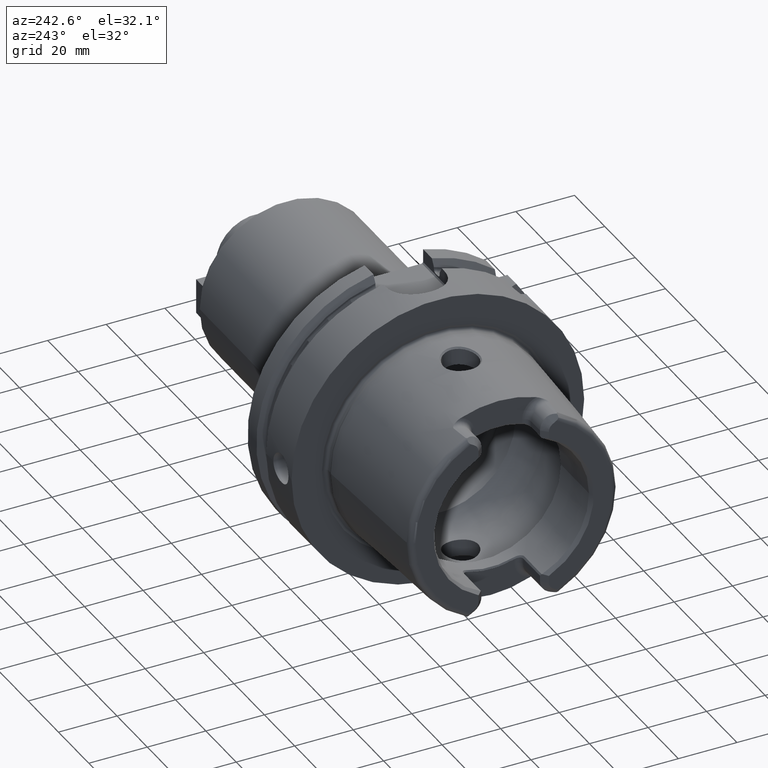
[diagram: clean part render]
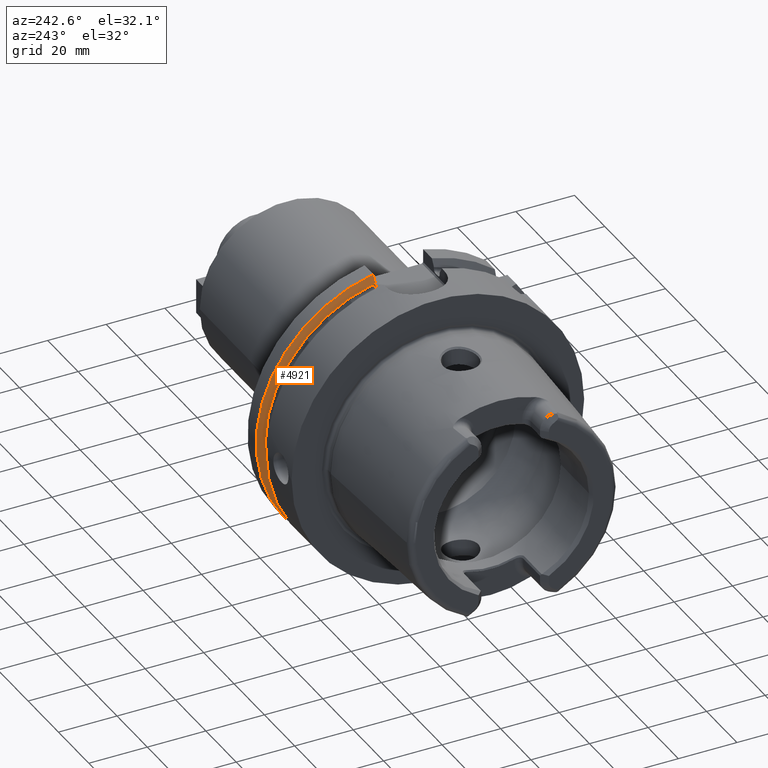
[diagram: same view with one face highlighted and labeled with its STEP entity id]
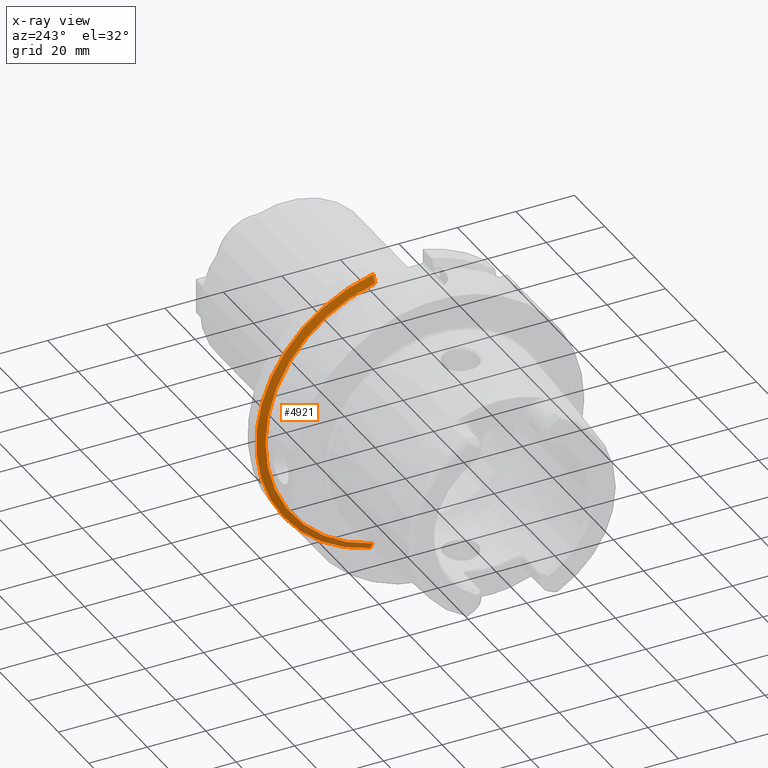
[diagram: x-ray of the same camera — body ghosted, the highlighted face saturated]
A machine part, auxiliary view. The second image highlights one B-rep face of the part: STEP entity #4921.
The next image is the same camera in x-ray: the body ghosted, the highlighted face saturated — about 15% of this face is hidden behind the body in this view.
In plain terms, the highlighted conical surface has half-angle 60 deg.
Its self-contained STEP definition (entity closure, byte-faithful):
#1646=CARTESIAN_POINT('',(2.324759526419E1,1.1E1,-4.877499359303E1));
#1647=CARTESIAN_POINT('',(2.309075618244E1,1.1E1,-4.849651763825E1));
#1648=CARTESIAN_POINT('',(2.277996511889E1,1.1E1,-4.794446101512E1));
#1649=CARTESIAN_POINT('',(2.232251548208E1,1.1E1,-4.713119970766E1));
#1650=CARTESIAN_POINT('',(2.202321854676E1,1.1E1,-4.659863454325E1));
#1651=CARTESIAN_POINT('',(2.1875E1,1.1E1,-4.633477721644E1));
#1653=CARTESIAN_POINT('',(2.324759526419E1,0.E0,0.E0));
#1654=DIRECTION('',(1.E0,0.E0,0.E0));
#1655=DIRECTION('',(0.E0,2.2E-1,-9.754998718606E-1));
#1656=AXIS2_PLACEMENT_3D('',#1653,#1654,#1655);
#1658=CARTESIAN_POINT('',(2.1875E1,1.E1,4.656083740331E1));
#1659=CARTESIAN_POINT('',(2.202341485415E1,1.E1,4.682376142925E1));
#1660=CARTESIAN_POINT('',(2.232297392293E1,1.E1,4.735424823675E1));
#1661=CARTESIAN_POINT('',(2.278043311037E1,1.E1,4.816377318979E1));
#1662=CARTESIAN_POINT('',(2.309095690730E1,1.E1,4.871289474479E1));
#1663=CARTESIAN_POINT('',(2.324759526419E1,1.E1,4.898979485566E1));
#1665=CARTESIAN_POINT('',(2.1875E1,0.E0,0.E0));
#1666=DIRECTION('',(-1.E0,0.E0,0.E0));
#1667=DIRECTION('',(0.E0,2.099843560504E-1,9.777047459300E-1));
#1668=AXIS2_PLACEMENT_3D('',#1665,#1666,#1667);
#3120=CARTESIAN_POINT('',(2.1875E1,1.E1,4.656083740331E1));
#3121=VERTEX_POINT('',#3120);
#3123=VERTEX_POINT('',#1663);
#3132=CARTESIAN_POINT('',(2.324759526419E1,1.1E1,-4.877499359303E1));
#3134=VERTEX_POINT('',#3132);
#3160=CARTESIAN_POINT('',(2.1875E1,1.1E1,-4.633477721644E1));
#3161=VERTEX_POINT('',#3160);
#4909=CARTESIAN_POINT('',(2.256129763210E1,0.E0,0.E0));
#4910=DIRECTION('',(1.E0,0.E0,0.E0));
#4911=DIRECTION('',(0.E0,-1.E0,0.E0));
#4912=AXIS2_PLACEMENT_3D('',#4909,#4910,#4911);
#4913=CONICAL_SURFACE('',#4912,4.881129763210E1,6.E1);
#4914=ORIENTED_EDGE('',*,*,#4540,.F.);
#4915=ORIENTED_EDGE('',*,*,#4471,.T.);
#4917=ORIENTED_EDGE('',*,*,#4916,.F.);
#4918=ORIENTED_EDGE('',*,*,#4873,.T.);
#4919=EDGE_LOOP('',(#4914,#4915,#4917,#4918));
#4920=FACE_OUTER_BOUND('',#4919,.F.);
#4921=ADVANCED_FACE('',(#4920),#4913,.T.);
#1652=B_SPLINE_CURVE_WITH_KNOTS('',3,(#1646,#1647,#1648,#1649,#1650,#1651),
.UNSPECIFIED.,.F.,.F.,(4,1,1,4),(0.E0,3.333333333333E-1,6.666666666667E-1,1.E0),
.UNSPECIFIED.);
#1657=CIRCLE('',#1656,5.E1);
#1664=B_SPLINE_CURVE_WITH_KNOTS('',3,(#1658,#1659,#1660,#1661,#1662,#1663),
.UNSPECIFIED.,.F.,.F.,(4,1,1,4),(0.E0,3.333333333333E-1,6.666666666667E-1,1.E0),
.UNSPECIFIED.);
#1669=CIRCLE('',#1668,4.762259526419E1);
#4471=EDGE_CURVE('',#3134,#3123,#1657,.T.);
#4540=EDGE_CURVE('',#3134,#3161,#1652,.T.);
#4873=EDGE_CURVE('',#3121,#3161,#1669,.T.);
#4916=EDGE_CURVE('',#3121,#3123,#1664,.T.);